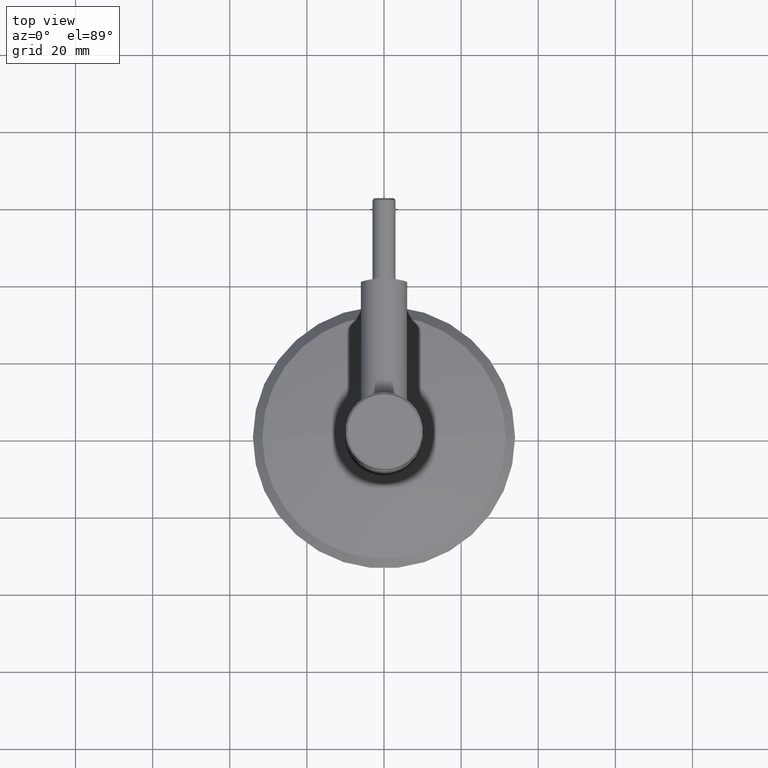
[diagram: clean part render]
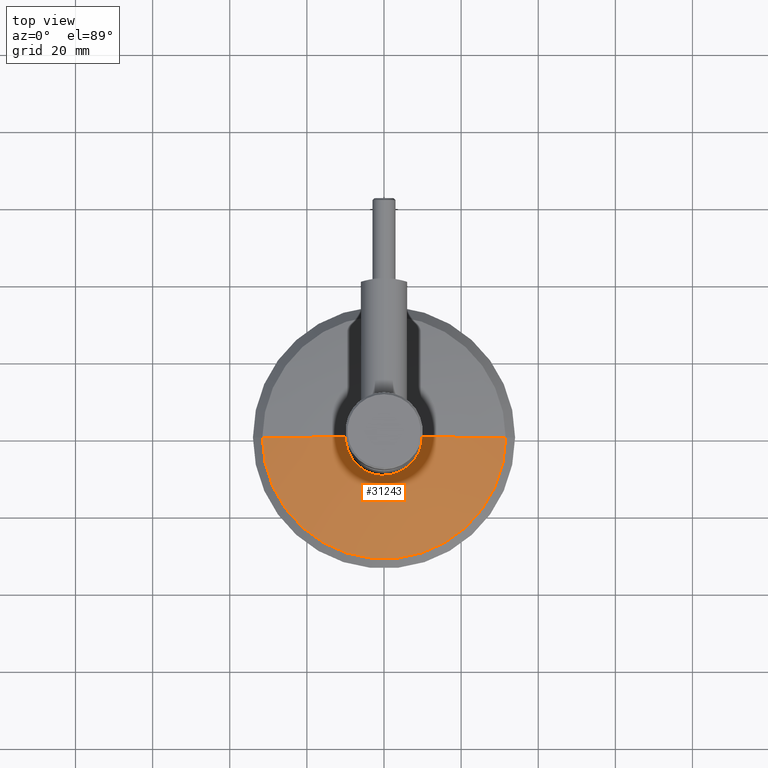
[diagram: same view with one face highlighted and labeled with its STEP entity id]
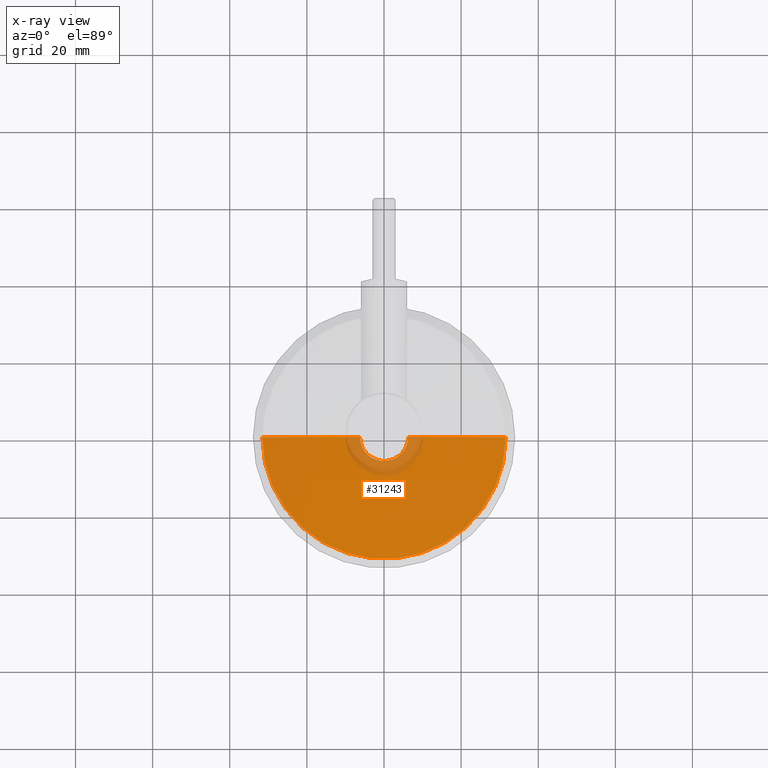
[diagram: x-ray of the same camera — body ghosted, the highlighted face saturated]
A machine part, top view. The second image highlights one B-rep face of the part: STEP entity #31243.
The next image is the same camera in x-ray: the body ghosted, the highlighted face saturated — about 6% of this face is hidden behind the body in this view.
In plain terms, the highlighted spherical surface has radius 137.202 mm.
Its self-contained STEP definition (entity closure, byte-faithful):
#1429 = CIRCLE ( 'NONE', #6515, 6.249999999999849898 ) ;
#2580 = CARTESIAN_POINT ( 'NONE',  ( 3.232237634562468506E-14, -132.2019220182881725, 0.000000000000000000 ) ) ;
#3556 = VERTEX_POINT ( 'NONE', #12525 ) ;
#3740 = CARTESIAN_POINT ( 'NONE',  ( 6.249999999999849898, 4.857572018106197653, 0.000000000000000000 ) ) ;
#4287 = DIRECTION ( 'NONE',  ( -1.000000000000000000, 0.000000000000000000, 0.000000000000000000 ) ) ;
#5373 = AXIS2_PLACEMENT_3D ( 'NONE', #18590, #13547, #20611 ) ;
#6383 = EDGE_CURVE ( 'NONE', #31121, #30385, #25264, .T. ) ;
#6441 = DIRECTION ( 'NONE',  ( -1.873600393855974325E-19, 1.000000000000000000, 0.000000000000000000 ) ) ;
#6463 = FACE_OUTER_BOUND ( 'NONE', #24690, .T. ) ;
#6515 = AXIS2_PLACEMENT_3D ( 'NONE', #6551, #6441, #4287 ) ;
#6551 = CARTESIAN_POINT ( 'NONE',  ( -9.101148846307532162E-19, 4.857572018106197653, 0.000000000000000000 ) ) ;
#8080 = VERTEX_POINT ( 'NONE', #26643 ) ;
#9131 = SPHERICAL_SURFACE ( 'NONE', #28418, 137.2019220182881440 ) ;
#9885 = EDGE_CURVE ( 'NONE', #3556, #31121, #28752, .T. ) ;
#10045 = AXIS2_PLACEMENT_3D ( 'NONE', #16226, #18808, #20929 ) ;
#10895 = ORIENTED_EDGE ( 'NONE', *, *, #9885, .T. ) ;
#11527 = DIRECTION ( 'NONE',  ( 0.000000000000000000, 0.000000000000000000, -1.000000000000000000 ) ) ;
#11545 = AXIS2_PLACEMENT_3D ( 'NONE', #2580, #12660, #14676 ) ;
#12525 = CARTESIAN_POINT ( 'NONE',  ( -31.55000000000002913, 1.323225072109827538, 4.013779884205454105E-15 ) ) ;
#12660 = DIRECTION ( 'NONE',  ( 0.000000000000000000, -0.000000000000000000, 1.000000000000000000 ) ) ;
#13547 = DIRECTION ( 'NONE',  ( 1.224646799147353207E-16, 2.294498725216939218E-35, -1.000000000000000000 ) ) ;
#13600 = CIRCLE ( 'NONE', #5373, 137.2019220182881440 ) ;
#14069 = CARTESIAN_POINT ( 'NONE',  ( 3.232237634562468506E-14, -132.2019220182881725, 0.000000000000000000 ) ) ;
#14676 = DIRECTION ( 'NONE',  ( 1.000000000000000000, 0.000000000000000000, 0.000000000000000000 ) ) ;
#16226 = CARTESIAN_POINT ( 'NONE',  ( -2.479195016265073111E-19, 1.323225072109827538, 0.000000000000000000 ) ) ;
#18143 = EDGE_CURVE ( 'NONE', #3556, #8080, #13600, .T. ) ;
#18590 = CARTESIAN_POINT ( 'NONE',  ( 3.232237634562468506E-14, -132.2019220182881725, 0.000000000000000000 ) ) ;
#18808 = DIRECTION ( 'NONE',  ( -1.873600393855974325E-19, 1.000000000000000000, 0.000000000000000000 ) ) ;
#20143 = ORIENTED_EDGE ( 'NONE', *, *, #6383, .T. ) ;
#20468 = ORIENTED_EDGE ( 'NONE', *, *, #18143, .F. ) ;
#20611 = DIRECTION ( 'NONE',  ( -1.000000000000000000, 0.000000000000000000, -1.224646799147353207E-16 ) ) ;
#20929 = DIRECTION ( 'NONE',  ( -1.000000000000000000, 0.000000000000000000, 0.000000000000000000 ) ) ;
#24349 = ORIENTED_EDGE ( 'NONE', *, *, #31538, .F. ) ;
#24684 = CARTESIAN_POINT ( 'NONE',  ( 31.55000000000002913, 1.323225072109827538, 0.000000000000000000 ) ) ;
#24690 = EDGE_LOOP ( 'NONE', ( #20468, #10895, #20143, #24349 ) ) ;
#25264 = CIRCLE ( 'NONE', #11545, 137.2019220182881440 ) ;
#26394 = DIRECTION ( 'NONE',  ( 1.000000000000000000, 0.000000000000000000, 0.000000000000000000 ) ) ;
#26643 = CARTESIAN_POINT ( 'NONE',  ( -6.249999999999849898, 4.857572018106197653, -2.314582450388493275E-15 ) ) ;
#28418 = AXIS2_PLACEMENT_3D ( 'NONE', #14069, #11527, #26394 ) ;
#28752 = CIRCLE ( 'NONE', #10045, 31.55000000000002913 ) ;
#30385 = VERTEX_POINT ( 'NONE', #3740 ) ;
#31121 = VERTEX_POINT ( 'NONE', #24684 ) ;
#31243 = ADVANCED_FACE ( 'NONE', ( #6463 ), #9131, .T. ) ;
#31538 = EDGE_CURVE ( 'NONE', #8080, #30385, #1429, .T. ) ;